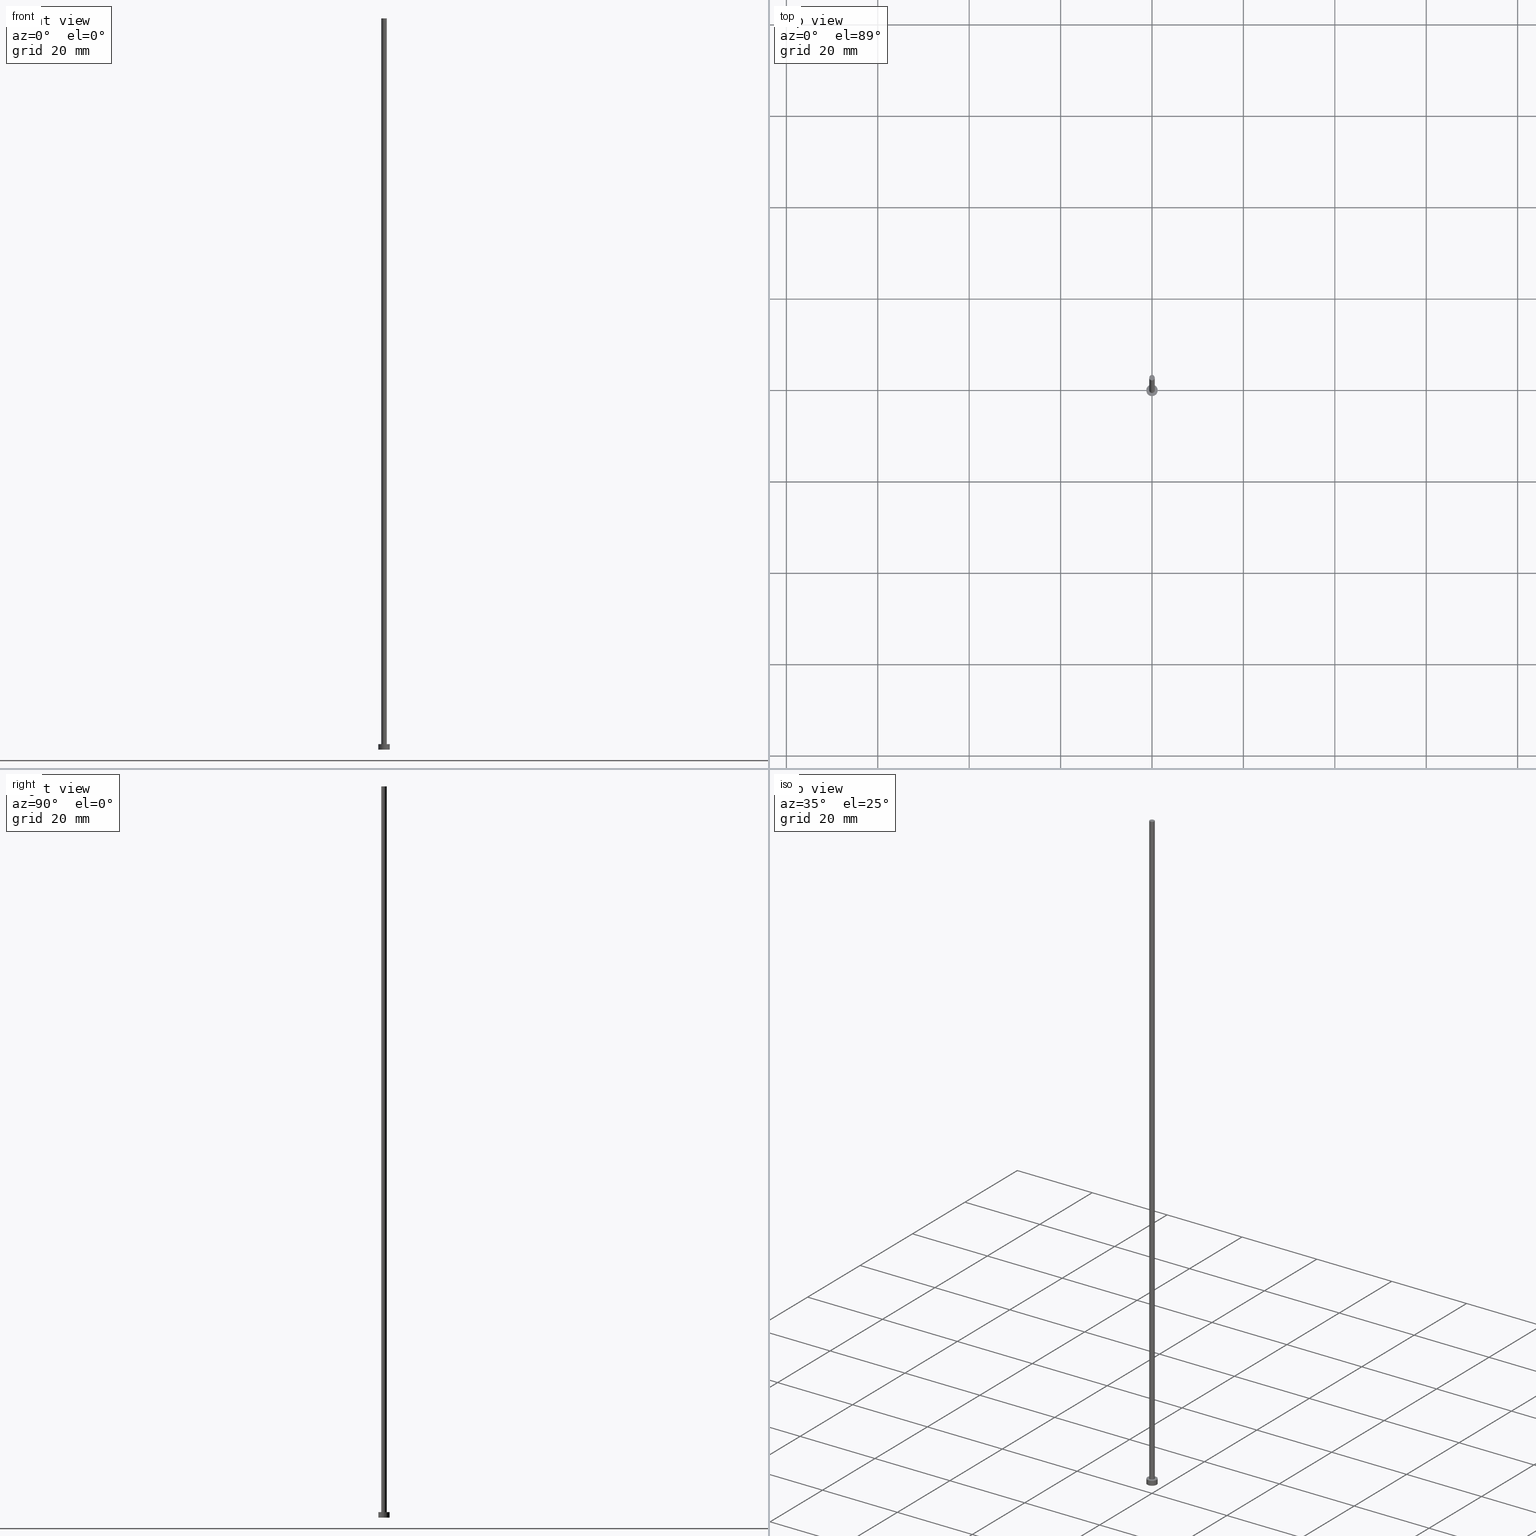
[diagram: canonical four-view strip — front | top / right | iso, engineering-drawing reading convention]
A machine part, canonical four-view strip (front | top / right | iso — engineering-drawing reading convention). The complete STEP part file that produces these views, byte-faithful:
ISO-10303-21;
HEADER;
FILE_DESCRIPTION (( 'STEP AP203' ),
    '1' );
FILE_NAME ('9ee1.STEP',
    '2023-02-12T12:59:16',
    ( '' ),
    ( '' ),
    'SwSTEP 2.0',
    'SolidWorks 2019',
    '' );
FILE_SCHEMA (( 'CONFIG_CONTROL_DESIGN' ));
ENDSEC;

DATA;
#1 = VERTEX_POINT ( 'NONE', #119 ) ;
#2 = VERTEX_POINT ( 'NONE', #199 ) ;
#3 = ORIENTED_EDGE ( 'NONE', *, *, #89, .F. ) ;
#4 = VECTOR ( 'NONE', #180, 1000.000000000000000 ) ;
#5 = APPROVAL_ROLE ( '' ) ;
#6 = DIRECTION ( 'NONE',  ( -0.000000000000000000, -0.000000000000000000, -1.000000000000000000 ) ) ;
#7 = CARTESIAN_POINT ( 'NONE',  ( 0.000000000000000000, 0.000000000000000000, 0.000000000000000000 ) ) ;
#8 = CARTESIAN_POINT ( 'NONE',  ( 0.000000000000000000, 0.000000000000000000, 160.0000000000000284 ) ) ;
#9 = AXIS2_PLACEMENT_3D ( 'NONE', #56, #204, #221 ) ;
#10 = DIRECTION ( 'NONE',  ( 0.000000000000000000, 0.000000000000000000, 1.000000000000000000 ) ) ;
#11 = ADVANCED_FACE ( 'NONE', ( #90, #135 ), #176, .T. ) ;
#12 = APPROVAL_PERSON_ORGANIZATION ( #107, #237, #5 ) ;
#13 = COORDINATED_UNIVERSAL_TIME_OFFSET ( 1, 0, .AHEAD. ) ;
#14 = CARTESIAN_POINT ( 'NONE',  ( -1.250000000000000000, 0.000000000000000000, 0.000000000000000000 ) ) ;
#15 = PERSON ( 'NEUR�EN�', 'NEUR�EN�', 'NEUR�EN�', ('NEUR�EN�'), ('NEUR�EN�'), ('NEUR�EN�') ) ;
#16 = CIRCLE ( 'NONE', #197, 1.250000000000000000 ) ;
#17 = CARTESIAN_POINT ( 'NONE',  ( 0.000000000000000000, 0.000000000000000000, 1.199999999999999956 ) ) ;
#18 = ORGANIZATION ( 'NEUR�EN�', 'NEUR�EN�', '' ) ;
#19 = DIRECTION ( 'NONE',  ( -0.000000000000000000, -0.000000000000000000, -1.000000000000000000 ) ) ;
#20 =( NAMED_UNIT ( * ) PLANE_ANGLE_UNIT ( ) SI_UNIT ( $, .RADIAN. ) );
#21 = CC_DESIGN_PERSON_AND_ORGANIZATION_ASSIGNMENT ( #156, #52, ( #127 ) ) ;
#22 = ORIENTED_EDGE ( 'NONE', *, *, #76, .T. ) ;
#23 = AXIS2_PLACEMENT_3D ( 'NONE', #8, #75, #155 ) ;
#24 = EDGE_CURVE ( 'NONE', #2, #1, #164, .T. ) ;
#25 = CIRCLE ( 'NONE', #211, 0.5999999999999999778 ) ;
#26 = CC_DESIGN_PERSON_AND_ORGANIZATION_ASSIGNMENT ( #49, #122, ( #109 ) ) ;
#27 = ORIENTED_EDGE ( 'NONE', *, *, #128, .T. ) ;
#28 = APPROVAL_ROLE ( '' ) ;
#29 = ORIENTED_EDGE ( 'NONE', *, *, #72, .T. ) ;
#30 = APPROVAL_DATE_TIME ( #175, #40 ) ;
#31 = ORIENTED_EDGE ( 'NONE', *, *, #210, .T. ) ;
#32 = CARTESIAN_POINT ( 'NONE',  ( 0.5999999999999999778, 7.347880794884117764E-17, 160.0000000000000284 ) ) ;
#33 = PERSON_AND_ORGANIZATION ( #15, #18 ) ;
#34 = LINE ( 'NONE', #32, #141 ) ;
#35 = COORDINATED_UNIVERSAL_TIME_OFFSET ( 1, 0, .AHEAD. ) ;
#36 = CYLINDRICAL_SURFACE ( 'NONE', #254, 0.5999999999999999778 ) ;
#37 = FACE_OUTER_BOUND ( 'NONE', #173, .T. ) ;
#38 = DIRECTION ( 'NONE',  ( -0.000000000000000000, -0.000000000000000000, -1.000000000000000000 ) ) ;
#39 = CARTESIAN_POINT ( 'NONE',  ( 1.250000000000000000, 1.530808498934191571E-16, 0.000000000000000000 ) ) ;
#40 = APPROVAL ( #215, 'NEUR�EN�' ) ;
#41 = FACE_OUTER_BOUND ( 'NONE', #236, .T. ) ;
#42 = EDGE_CURVE ( 'NONE', #196, #43, #34, .T. ) ;
#43 = VERTEX_POINT ( 'NONE', #53 ) ;
#44 = ORIENTED_EDGE ( 'NONE', *, *, #185, .T. ) ;
#45 = VECTOR ( 'NONE', #57, 1000.000000000000000 ) ;
#46 = ADVANCED_BREP_SHAPE_REPRESENTATION ( '9ee1', ( #229, #58 ), #148 ) ;
#47 = EDGE_LOOP ( 'NONE', ( #3, #29, #44, #217 ) ) ;
#48 = DATE_TIME_ROLE ( 'classification_date' ) ;
#49 = PERSON_AND_ORGANIZATION ( #15, #18 ) ;
#50 = CARTESIAN_POINT ( 'NONE',  ( 0.000000000000000000, 0.000000000000000000, 1.199999999999999956 ) ) ;
#51 = AXIS2_PLACEMENT_3D ( 'NONE', #241, #246, #228 ) ;
#52 = PERSON_AND_ORGANIZATION_ROLE ( 'creator' ) ;
#53 = CARTESIAN_POINT ( 'NONE',  ( 0.5999999999999999778, 7.347880794884117764E-17, 1.199999999999999956 ) ) ;
#54 = PERSON_AND_ORGANIZATION_ROLE ( 'design_supplier' ) ;
#55 = DIRECTION ( 'NONE',  ( 1.000000000000000000, 0.000000000000000000, 0.000000000000000000 ) ) ;
#56 = CARTESIAN_POINT ( 'NONE',  ( 0.000000000000000000, 0.000000000000000000, 1.199999999999999956 ) ) ;
#57 = DIRECTION ( 'NONE',  ( -0.000000000000000000, -0.000000000000000000, -1.000000000000000000 ) ) ;
#58 = AXIS2_PLACEMENT_3D ( 'NONE', #212, #131, #233 ) ;
#59 = ADVANCED_FACE ( 'NONE', ( #101 ), #138, .T. ) ;
#60 = SECURITY_CLASSIFICATION ( '', '', #118 ) ;
#61 = DIRECTION ( 'NONE',  ( -0.000000000000000000, -0.000000000000000000, -1.000000000000000000 ) ) ;
#62 = AXIS2_PLACEMENT_3D ( 'NONE', #183, #10, #126 ) ;
#63 = ORIENTED_EDGE ( 'NONE', *, *, #185, .F. ) ;
#64 = EDGE_LOOP ( 'NONE', ( #31, #97 ) ) ;
#65 = AXIS2_PLACEMENT_3D ( 'NONE', #50, #38, #208 ) ;
#66 = DATE_AND_TIME ( #240, #189 ) ;
#67 = CYLINDRICAL_SURFACE ( 'NONE', #65, 1.250000000000000000 ) ;
#68 = CARTESIAN_POINT ( 'NONE',  ( 0.000000000000000000, 0.000000000000000000, 1.199999999999999956 ) ) ;
#69 = AXIS2_PLACEMENT_3D ( 'NONE', #125, #157, #88 ) ;
#70 = DATE_AND_TIME ( #200, #253 ) ;
#71 = DIRECTION ( 'NONE',  ( 0.000000000000000000, 0.000000000000000000, 1.000000000000000000 ) ) ;
#72 = EDGE_CURVE ( 'NONE', #1, #238, #154, .T. ) ;
#73 = CARTESIAN_POINT ( 'NONE',  ( 0.000000000000000000, 0.000000000000000000, 1.199999999999999956 ) ) ;
#74 = PERSON_AND_ORGANIZATION ( #15, #18 ) ;
#75 = DIRECTION ( 'NONE',  ( 0.000000000000000000, 0.000000000000000000, 1.000000000000000000 ) ) ;
#76 = EDGE_CURVE ( 'NONE', #149, #81, #181, .T. ) ;
#77 = DIRECTION ( 'NONE',  ( 0.000000000000000000, 0.000000000000000000, 1.000000000000000000 ) ) ;
#78 = UNCERTAINTY_MEASURE_WITH_UNIT (LENGTH_MEASURE( 1.000000000000000082E-05 ), #111, 'distance_accuracy_value', 'NONE');
#79 = ADVANCED_FACE ( 'NONE', ( #159 ), #245, .F. ) ;
#80 = CC_DESIGN_SECURITY_CLASSIFICATION ( #60, ( #109 ) ) ;
#81 = VERTEX_POINT ( 'NONE', #242 ) ;
#82 = EDGE_CURVE ( 'NONE', #108, #238, #16, .T. ) ;
#83 = ORIENTED_EDGE ( 'NONE', *, *, #128, .F. ) ;
#84 = COORDINATED_UNIVERSAL_TIME_OFFSET ( 1, 0, .AHEAD. ) ;
#85 = DIRECTION ( 'NONE',  ( 1.000000000000000000, 0.000000000000000000, 0.000000000000000000 ) ) ;
#86 = CC_DESIGN_APPROVAL ( #169, ( #60 ) ) ;
#87 = CALENDAR_DATE ( 2023, 12, 2 ) ;
#88 = DIRECTION ( 'NONE',  ( 1.000000000000000000, 0.000000000000000000, 0.000000000000000000 ) ) ;
#89 = EDGE_CURVE ( 'NONE', #1, #2, #147, .T. ) ;
#90 = FACE_BOUND ( 'NONE', #117, .T. ) ;
#91 = PERSON_AND_ORGANIZATION_ROLE ( 'classification_officer' ) ;
#92 = CARTESIAN_POINT ( 'NONE',  ( 0.000000000000000000, 0.000000000000000000, 160.0000000000000284 ) ) ;
#93 = DIRECTION ( 'NONE',  ( 1.000000000000000000, 0.000000000000000000, 0.000000000000000000 ) ) ;
#94 = CYLINDRICAL_SURFACE ( 'NONE', #113, 1.250000000000000000 ) ;
#95 = APPLICATION_PROTOCOL_DEFINITION ( 'international standard', 'config_control_design', 1994, #167 ) ;
#96 = APPROVAL_PERSON_ORGANIZATION ( #153, #169, #28 ) ;
#97 = ORIENTED_EDGE ( 'NONE', *, *, #182, .T. ) ;
#98 = ORIENTED_EDGE ( 'NONE', *, *, #182, .F. ) ;
#99 = APPLICATION_CONTEXT ( 'configuration controlled 3d designs of mechanical parts and assemblies' ) ;
#100 = CALENDAR_DATE ( 2023, 12, 2 ) ;
#101 = FACE_OUTER_BOUND ( 'NONE', #64, .T. ) ;
#102 = DATE_AND_TIME ( #137, #222 ) ;
#103 = DIRECTION ( 'NONE',  ( -0.000000000000000000, -0.000000000000000000, -1.000000000000000000 ) ) ;
#104 = COORDINATED_UNIVERSAL_TIME_OFFSET ( 1, 0, .AHEAD. ) ;
#105 = CC_DESIGN_PERSON_AND_ORGANIZATION_ASSIGNMENT ( #223, #54, ( #109 ) ) ;
#106 = CARTESIAN_POINT ( 'NONE',  ( 1.250000000000000000, 1.530808498934191571E-16, 1.199999999999999956 ) ) ;
#107 = PERSON_AND_ORGANIZATION ( #15, #18 ) ;
#108 = VERTEX_POINT ( 'NONE', #14 ) ;
#109 = PRODUCT_DEFINITION_FORMATION_WITH_SPECIFIED_SOURCE ( 'LIBOVOLN�', '', #150, .NOT_KNOWN. ) ;
#110 = DIRECTION ( 'NONE',  ( 1.000000000000000000, 0.000000000000000000, 0.000000000000000000 ) ) ;
#111 =( LENGTH_UNIT ( ) NAMED_UNIT ( * ) SI_UNIT ( .MILLI., .METRE. ) );
#112 = DIRECTION ( 'NONE',  ( -1.000000000000000000, 0.000000000000000000, 0.000000000000000000 ) ) ;
#113 = AXIS2_PLACEMENT_3D ( 'NONE', #17, #61, #143 ) ;
#114 = ORIENTED_EDGE ( 'NONE', *, *, #210, .F. ) ;
#115 = EDGE_CURVE ( 'NONE', #81, #43, #187, .T. ) ;
#116 = PRODUCT_DEFINITION_SHAPE ( 'NONE', 'NONE',  #127 ) ;
#117 = EDGE_LOOP ( 'NONE', ( #192, #83 ) ) ;
#118 = SECURITY_CLASSIFICATION_LEVEL ( 'unclassified' ) ;
#119 = CARTESIAN_POINT ( 'NONE',  ( 1.250000000000000000, 1.530808498934191571E-16, 1.199999999999999956 ) ) ;
#120 = DATE_TIME_ROLE ( 'creation_date' ) ;
#121 = ORIENTED_EDGE ( 'NONE', *, *, #24, .F. ) ;
#122 = PERSON_AND_ORGANIZATION_ROLE ( 'creator' ) ;
#123 = DIRECTION ( 'NONE',  ( 1.000000000000000000, 0.000000000000000000, 0.000000000000000000 ) ) ;
#124 = APPROVAL_ROLE ( '' ) ;
#125 = CARTESIAN_POINT ( 'NONE',  ( 0.000000000000000000, 0.000000000000000000, 1.199999999999999956 ) ) ;
#126 = DIRECTION ( 'NONE',  ( 1.000000000000000000, 0.000000000000000000, -0.000000000000000000 ) ) ;
#127 = PRODUCT_DEFINITION ( 'NEZN�M�', '', #109, #207 ) ;
#128 = EDGE_CURVE ( 'NONE', #43, #81, #144, .T. ) ;
#129 = ORIENTED_EDGE ( 'NONE', *, *, #72, .F. ) ;
#130 = CIRCLE ( 'NONE', #166, 1.250000000000000000 ) ;
#131 = DIRECTION ( 'NONE',  ( 0.000000000000000000, 0.000000000000000000, 1.000000000000000000 ) ) ;
#132 = ORIENTED_EDGE ( 'NONE', *, *, #115, .T. ) ;
#133 = LOCAL_TIME ( 13, 59, 16.00000000000000000, #104 ) ;
#134 = APPROVAL_DATE_TIME ( #66, #169 ) ;
#135 = FACE_OUTER_BOUND ( 'NONE', #202, .T. ) ;
#136 = CC_DESIGN_PERSON_AND_ORGANIZATION_ASSIGNMENT ( #171, #226, ( #150 ) ) ;
#137 = CALENDAR_DATE ( 2023, 12, 2 ) ;
#138 = PLANE ( 'NONE',  #23 ) ;
#139 = CARTESIAN_POINT ( 'NONE',  ( -0.5999999999999999778, 0.000000000000000000, 160.0000000000000284 ) ) ;
#140 = CARTESIAN_POINT ( 'NONE',  ( -1.250000000000000000, 0.000000000000000000, 1.199999999999999956 ) ) ;
#141 = VECTOR ( 'NONE', #6, 1000.000000000000000 ) ;
#142 = FACE_OUTER_BOUND ( 'NONE', #47, .T. ) ;
#143 = DIRECTION ( 'NONE',  ( -1.000000000000000000, 0.000000000000000000, 0.000000000000000000 ) ) ;
#144 = CIRCLE ( 'NONE', #243, 0.5999999999999999778 ) ;
#145 = DIRECTION ( 'NONE',  ( 0.000000000000000000, 0.000000000000000000, 1.000000000000000000 ) ) ;
#146 = ORIENTED_EDGE ( 'NONE', *, *, #82, .F. ) ;
#147 = CIRCLE ( 'NONE', #51, 1.250000000000000000 ) ;
#148 =( GEOMETRIC_REPRESENTATION_CONTEXT ( 3 ) GLOBAL_UNCERTAINTY_ASSIGNED_CONTEXT ( ( #78 ) ) GLOBAL_UNIT_ASSIGNED_CONTEXT ( ( #111, #20, #168 ) ) REPRESENTATION_CONTEXT ( 'NONE', 'WORKASPACE' ) );
#149 = VERTEX_POINT ( 'NONE', #219 ) ;
#150 = PRODUCT ( '9ee1', '9ee1', '', ( #170 ) ) ;
#151 = ORIENTED_EDGE ( 'NONE', *, *, #24, .T. ) ;
#152 = ORIENTED_EDGE ( 'NONE', *, *, #76, .F. ) ;
#153 = PERSON_AND_ORGANIZATION ( #15, #18 ) ;
#154 = LINE ( 'NONE', #106, #206 ) ;
#155 = DIRECTION ( 'NONE',  ( 1.000000000000000000, 0.000000000000000000, -0.000000000000000000 ) ) ;
#156 = PERSON_AND_ORGANIZATION ( #15, #18 ) ;
#157 = DIRECTION ( 'NONE',  ( 0.000000000000000000, 0.000000000000000000, 1.000000000000000000 ) ) ;
#158 = ADVANCED_FACE ( 'NONE', ( #227 ), #36, .T. ) ;
#159 = FACE_OUTER_BOUND ( 'NONE', #194, .T. ) ;
#160 = LOCAL_TIME ( 13, 59, 16.00000000000000000, #248 ) ;
#161 = DATE_AND_TIME ( #100, #133 ) ;
#162 = DIRECTION ( 'NONE',  ( -0.000000000000000000, -0.000000000000000000, -1.000000000000000000 ) ) ;
#163 = DIRECTION ( 'NONE',  ( 1.000000000000000000, 0.000000000000000000, 0.000000000000000000 ) ) ;
#164 = CIRCLE ( 'NONE', #69, 1.250000000000000000 ) ;
#165 = EDGE_CURVE ( 'NONE', #2, #108, #249, .T. ) ;
#166 = AXIS2_PLACEMENT_3D ( 'NONE', #230, #205, #110 ) ;
#167 = APPLICATION_CONTEXT ( 'configuration controlled 3d designs of mechanical parts and assemblies' ) ;
#168 =( NAMED_UNIT ( * ) SI_UNIT ( $, .STERADIAN. ) SOLID_ANGLE_UNIT ( ) );
#169 = APPROVAL ( #195, 'NEUR�EN�' ) ;
#170 = MECHANICAL_CONTEXT ( 'NONE', #167, 'mechanical' ) ;
#171 = PERSON_AND_ORGANIZATION ( #15, #18 ) ;
#172 = PRODUCT_RELATED_PRODUCT_CATEGORY ( 'detail', '', ( #150 ) ) ;
#173 = EDGE_LOOP ( 'NONE', ( #129, #121, #234, #214 ) ) ;
#174 = ADVANCED_FACE ( 'NONE', ( #37 ), #67, .T. ) ;
#175 = DATE_AND_TIME ( #87, #160 ) ;
#176 = PLANE ( 'NONE',  #9 ) ;
#177 = AXIS2_PLACEMENT_3D ( 'NONE', #231, #19, #112 ) ;
#178 = DIRECTION ( 'NONE',  ( -1.000000000000000000, 0.000000000000000000, 0.000000000000000000 ) ) ;
#179 = APPROVAL_STATUS ( 'not_yet_approved' ) ;
#180 = DIRECTION ( 'NONE',  ( -0.000000000000000000, -0.000000000000000000, -1.000000000000000000 ) ) ;
#181 = LINE ( 'NONE', #139, #4 ) ;
#182 = EDGE_CURVE ( 'NONE', #196, #149, #239, .T. ) ;
#183 = CARTESIAN_POINT ( 'NONE',  ( 0.000000000000000000, 0.000000000000000000, 0.000000000000000000 ) ) ;
#184 = AXIS2_PLACEMENT_3D ( 'NONE', #251, #145, #93 ) ;
#185 = EDGE_CURVE ( 'NONE', #238, #108, #130, .T. ) ;
#186 = CARTESIAN_POINT ( 'NONE',  ( 0.000000000000000000, 0.000000000000000000, 160.0000000000000284 ) ) ;
#187 = CIRCLE ( 'NONE', #220, 0.5999999999999999778 ) ;
#188 = ADVANCED_FACE ( 'NONE', ( #41 ), #190, .T. ) ;
#189 = LOCAL_TIME ( 13, 59, 16.00000000000000000, #84 ) ;
#190 = CYLINDRICAL_SURFACE ( 'NONE', #177, 0.5999999999999999778 ) ;
#191 = CC_DESIGN_APPROVAL ( #40, ( #127 ) ) ;
#192 = ORIENTED_EDGE ( 'NONE', *, *, #115, .F. ) ;
#193 = CC_DESIGN_DATE_AND_TIME_ASSIGNMENT ( #102, #120, ( #127 ) ) ;
#194 = EDGE_LOOP ( 'NONE', ( #146, #63 ) ) ;
#195 = APPROVAL_STATUS ( 'not_yet_approved' ) ;
#196 = VERTEX_POINT ( 'NONE', #252 ) ;
#197 = AXIS2_PLACEMENT_3D ( 'NONE', #7, #71, #85 ) ;
#198 = APPROVAL_DATE_TIME ( #70, #237 ) ;
#199 = CARTESIAN_POINT ( 'NONE',  ( -1.250000000000000000, 0.000000000000000000, 1.199999999999999956 ) ) ;
#200 = CALENDAR_DATE ( 2023, 12, 2 ) ;
#201 = CC_DESIGN_APPROVAL ( #237, ( #109 ) ) ;
#202 = EDGE_LOOP ( 'NONE', ( #151, #232 ) ) ;
#203 = DIRECTION ( 'NONE',  ( 0.000000000000000000, 0.000000000000000000, 1.000000000000000000 ) ) ;
#204 = DIRECTION ( 'NONE',  ( 0.000000000000000000, 0.000000000000000000, 1.000000000000000000 ) ) ;
#205 = DIRECTION ( 'NONE',  ( 0.000000000000000000, 0.000000000000000000, 1.000000000000000000 ) ) ;
#206 = VECTOR ( 'NONE', #103, 1000.000000000000000 ) ;
#207 = DESIGN_CONTEXT ( 'detailed design', #99, 'design' ) ;
#208 = DIRECTION ( 'NONE',  ( -1.000000000000000000, 0.000000000000000000, 0.000000000000000000 ) ) ;
#209 = ORIENTED_EDGE ( 'NONE', *, *, #42, .F. ) ;
#210 = EDGE_CURVE ( 'NONE', #149, #196, #25, .T. ) ;
#211 = AXIS2_PLACEMENT_3D ( 'NONE', #186, #77, #163 ) ;
#212 = CARTESIAN_POINT ( 'NONE',  ( 0.000000000000000000, 0.000000000000000000, 0.000000000000000000 ) ) ;
#213 = EDGE_LOOP ( 'NONE', ( #209, #114, #22, #132 ) ) ;
#214 = ORIENTED_EDGE ( 'NONE', *, *, #82, .T. ) ;
#215 = APPROVAL_STATUS ( 'not_yet_approved' ) ;
#216 = CC_DESIGN_PERSON_AND_ORGANIZATION_ASSIGNMENT ( #33, #91, ( #60 ) ) ;
#217 = ORIENTED_EDGE ( 'NONE', *, *, #165, .F. ) ;
#218 = SHAPE_DEFINITION_REPRESENTATION ( #116, #46 ) ;
#219 = CARTESIAN_POINT ( 'NONE',  ( -0.5999999999999999778, 0.000000000000000000, 160.0000000000000284 ) ) ;
#220 = AXIS2_PLACEMENT_3D ( 'NONE', #68, #224, #55 ) ;
#221 = DIRECTION ( 'NONE',  ( 1.000000000000000000, 0.000000000000000000, -0.000000000000000000 ) ) ;
#222 = LOCAL_TIME ( 13, 59, 16.00000000000000000, #35 ) ;
#223 = PERSON_AND_ORGANIZATION ( #15, #18 ) ;
#224 = DIRECTION ( 'NONE',  ( 0.000000000000000000, 0.000000000000000000, 1.000000000000000000 ) ) ;
#225 = CC_DESIGN_DATE_AND_TIME_ASSIGNMENT ( #161, #48, ( #60 ) ) ;
#226 = PERSON_AND_ORGANIZATION_ROLE ( 'design_owner' ) ;
#227 = FACE_OUTER_BOUND ( 'NONE', #213, .T. ) ;
#228 = DIRECTION ( 'NONE',  ( 1.000000000000000000, 0.000000000000000000, 0.000000000000000000 ) ) ;
#229 = MANIFOLD_SOLID_BREP ( 'P�idat vysunut�m3', #250 ) ;
#230 = CARTESIAN_POINT ( 'NONE',  ( 0.000000000000000000, 0.000000000000000000, 0.000000000000000000 ) ) ;
#231 = CARTESIAN_POINT ( 'NONE',  ( 0.000000000000000000, 0.000000000000000000, 160.0000000000000284 ) ) ;
#232 = ORIENTED_EDGE ( 'NONE', *, *, #89, .T. ) ;
#233 = DIRECTION ( 'NONE',  ( 1.000000000000000000, 0.000000000000000000, 0.000000000000000000 ) ) ;
#234 = ORIENTED_EDGE ( 'NONE', *, *, #165, .T. ) ;
#235 = ORIENTED_EDGE ( 'NONE', *, *, #42, .T. ) ;
#236 = EDGE_LOOP ( 'NONE', ( #98, #235, #27, #152 ) ) ;
#237 = APPROVAL ( #179, 'NEUR�EN�' ) ;
#238 = VERTEX_POINT ( 'NONE', #39 ) ;
#239 = CIRCLE ( 'NONE', #184, 0.5999999999999999778 ) ;
#240 = CALENDAR_DATE ( 2023, 12, 2 ) ;
#241 = CARTESIAN_POINT ( 'NONE',  ( 0.000000000000000000, 0.000000000000000000, 1.199999999999999956 ) ) ;
#242 = CARTESIAN_POINT ( 'NONE',  ( -0.5999999999999999778, 0.000000000000000000, 1.199999999999999956 ) ) ;
#243 = AXIS2_PLACEMENT_3D ( 'NONE', #73, #203, #123 ) ;
#244 = APPLICATION_PROTOCOL_DEFINITION ( 'international standard', 'config_control_design', 1994, #99 ) ;
#245 = PLANE ( 'NONE',  #62 ) ;
#246 = DIRECTION ( 'NONE',  ( 0.000000000000000000, 0.000000000000000000, 1.000000000000000000 ) ) ;
#247 = ADVANCED_FACE ( 'NONE', ( #142 ), #94, .T. ) ;
#248 = COORDINATED_UNIVERSAL_TIME_OFFSET ( 1, 0, .AHEAD. ) ;
#249 = LINE ( 'NONE', #140, #45 ) ;
#250 = CLOSED_SHELL ( 'NONE', ( #188, #247, #174, #11, #79, #158, #59 ) ) ;
#251 = CARTESIAN_POINT ( 'NONE',  ( 0.000000000000000000, 0.000000000000000000, 160.0000000000000284 ) ) ;
#252 = CARTESIAN_POINT ( 'NONE',  ( 0.5999999999999999778, 7.347880794884117764E-17, 160.0000000000000284 ) ) ;
#253 = LOCAL_TIME ( 13, 59, 16.00000000000000000, #13 ) ;
#254 = AXIS2_PLACEMENT_3D ( 'NONE', #92, #162, #178 ) ;
#255 = APPROVAL_PERSON_ORGANIZATION ( #74, #40, #124 ) ;
ENDSEC;
END-ISO-10303-21;
